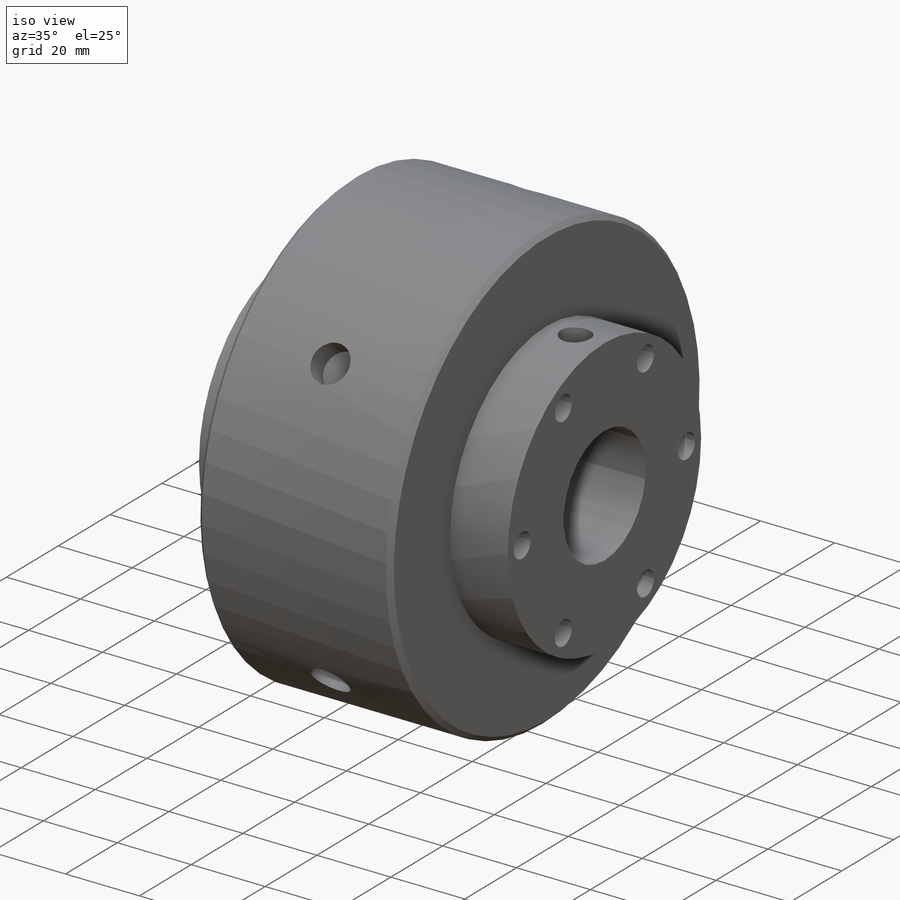
[diagram: iso view]
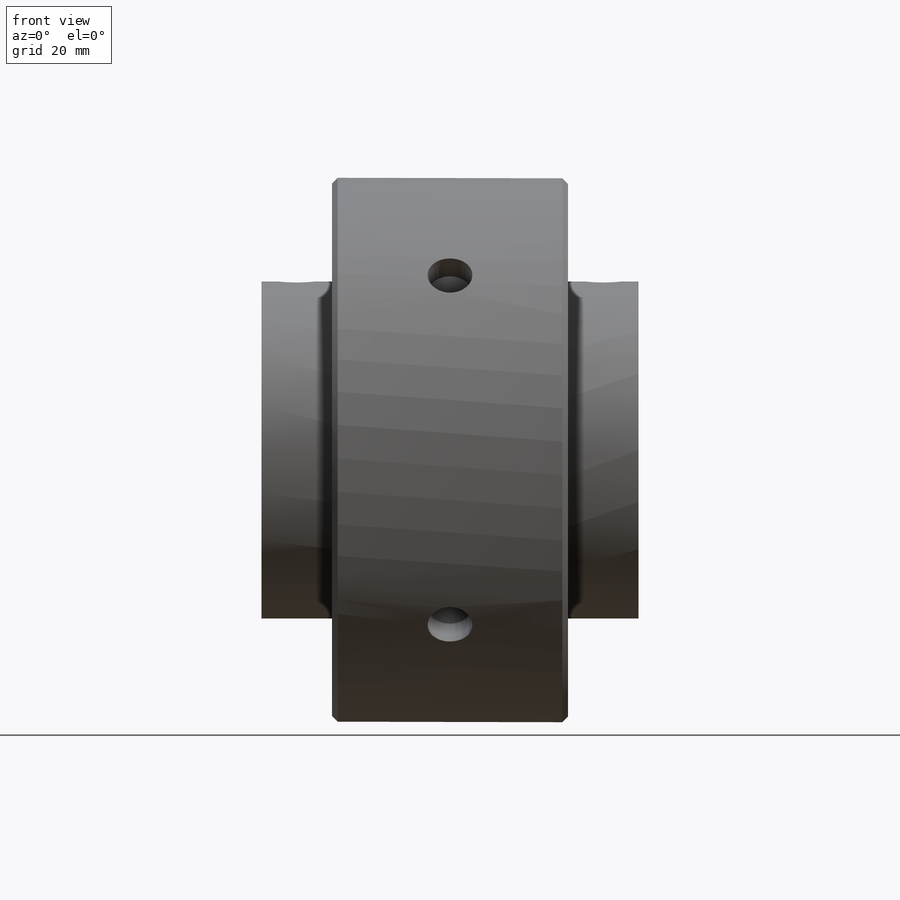
[diagram: front view]
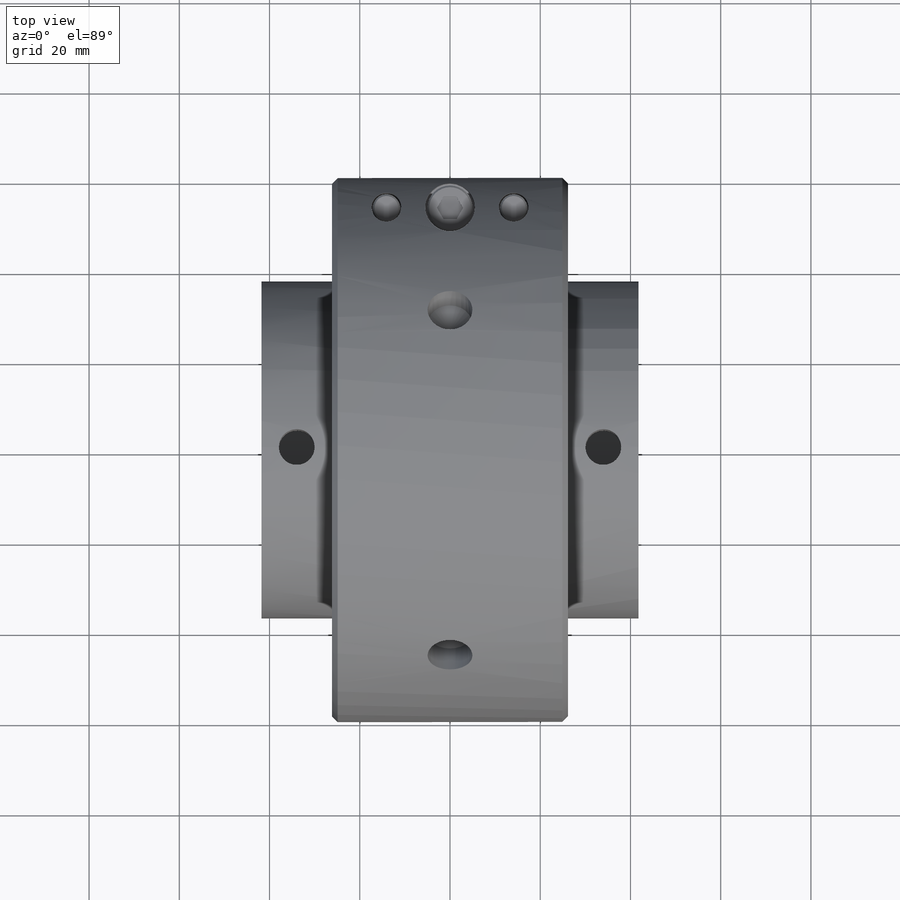
[diagram: top view]
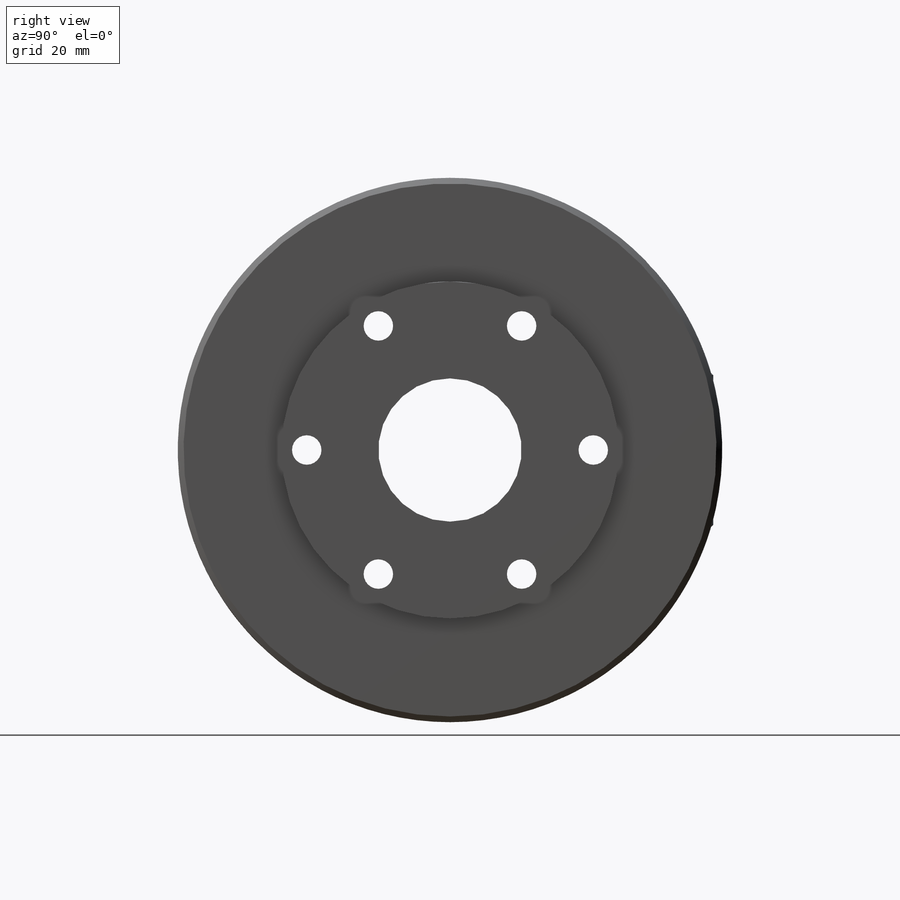
[diagram: right view]
SOLIDWORKS PART (.sldprt)
format: sldprt  version: not decoded by parser v0  size: 555,008 bytes
history: native  units: mm
features: sketch x14, thread x8, plane x4, cut_extrude x3, hole x3, chamfer x2, cut_revolve x2, mirror x2, extrude x2, material x1, revolve x1, pattern_linear x1, delete_body x1, pattern_circular x1 (+16 scaffold rows collapsed)
feature tree (61):
  scaffold x16  (default folders/planes/origin — collapsed)
  material  "Material <not specified>"
  sketch  "Sketch1"  dims[D1=52.324mm D2=83.566mm D3=60.325mm D4=37.338mm D5=6.604mm]
  revolve  "Hub"  Angle=360deg
  sketch  "Sketch2"  dims[D1=31.75mm]
  cut_extrude  "Bore"  [1 undecoded]
  hole  "Face Mount Screws"  Diameter=6.5278mm Depth=83.566mm
  sketch  "Sketch4"  dims[D1=19.05mm]
  sketch  "Sketch3"  dims[hole-wizard template sketch: 59 standard entries collapsed; hole parameters kept: c18.Thru Tap Drill Dia.=6.5278mm c18.Thru Tap Drill Depth=83.566mm]
  thread  "Hole Thread1"  Diameter=7.9375mm  [1 undecoded]
  thread  "Hole Thread2"  Diameter=7.9375mm  [1 undecoded]
  thread  "Hole Thread3"  Diameter=7.9375mm  [1 undecoded]
  thread  "Hole Thread6"  Diameter=7.9375mm  [1 undecoded]
  thread  "Hole Thread7"  Diameter=7.9375mm  [1 undecoded]
  thread  "Hole Thread8"  Diameter=7.9375mm  [1 undecoded]
  hole  "Set Screws"  Diameter=7.9375mm Depth=60.325mm
  sketch  "Sketch6"
  sketch  "Sketch5"  dims[hole-wizard template sketch: 60 standard entries collapsed; hole parameters kept: c18.Thru Tap Drill Depth=60.325mm]
  thread  "Hole Thread4"  Diameter=9.525mm  [1 undecoded]
  thread  "Hole Thread5"  Diameter=9.525mm  [1 undecoded]
  chamfer  "Chamfer1"  Distance=1.27mm Angle=45deg
  plane  "Locking Screws"  Offset=53.34mm
  sketch  "Sketch12"  dims[D1=5.5mm D2=3.3mm D3=10.0mm]
  cut_revolve  "Cut-Revolve1"  Angle=360deg
  sketch  "Sketch14"
  cut_revolve  "Cut-Revolve2"  Angle=360deg
  mirror  "Mirror2"
  sketch  "Sketch15"  dims[D1=6.0mm]
  extrude  "Boss-Extrude1"  Depth=1mm
  sketch  "Sketch16"  dims[D1=10.0mm]
  extrude  "Boss-Extrude2"  Depth=6mm
  chamfer  "Chamfer2"  Distance=0.381mm Angle=45deg
  sketch  "Sketch17"  dims[D1=5.0mm]
  cut_extrude  "Cut-Extrude2"  Depth=2mm
  pattern_linear  "LPattern2"  Count1=2 Count2=2 Spacing1=14.095984mm Spacing2=14.095984mm
  mirror  "Mirror4"
  delete_body  "Body-Delete1"
  sketch  "Sketch18"
  cut_extrude  "Cut-Extrude3"  Depth=0.127mm
  plane  "Spanner Angle"
  plane  "Plane2"
  plane  "Hub Radius"  Offset=60.325mm
  hole  "25/64 (0.39063) Diameter Hole1"  Diameter=9.922002mm Depth=6.35mm
  sketch  "Sketch20"
  sketch  "Sketch19"  dims[hole-wizard template sketch: 46 standard entries collapsed; hole parameters kept: c15.Hole Dia.=~9.922002mm c15.Hole Depth=6.35mm c15.D3=~14.816244mm c15.Drill Angle=118.0deg]
  pattern_circular  "CirPattern1"  Count=4 Angle=80deg
decode coverage: 32 of 40 modeling features carry decoded parameters
note: ~ marks probable driven/reference dimensions
note: 9 parameter values undecoded
note: suppression state not decoded; provenance and decode notes live in map.json
